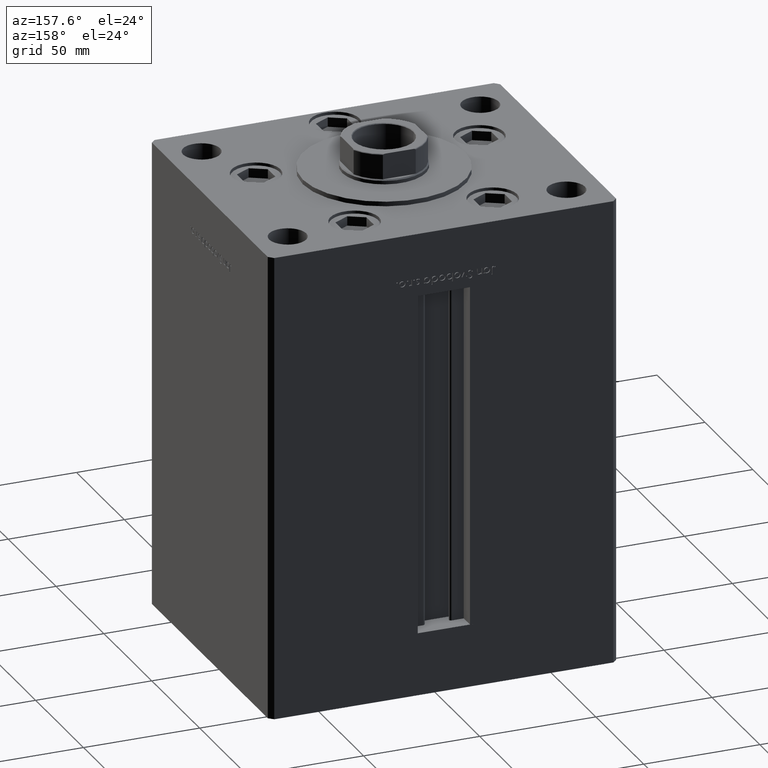
[diagram: clean part render]
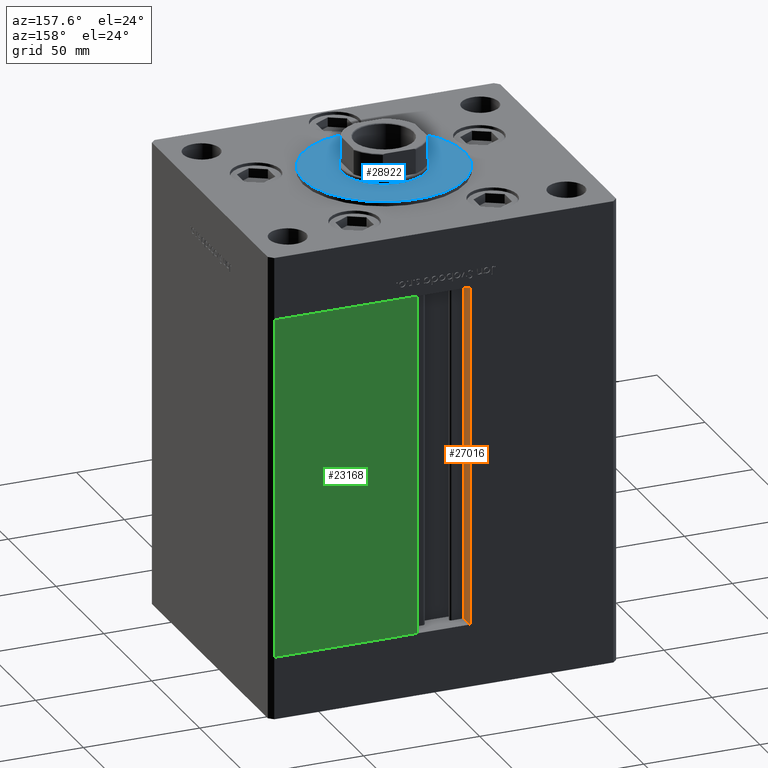
[diagram: same view with three faces highlighted in distinct colors, each labeled with its STEP entity id]
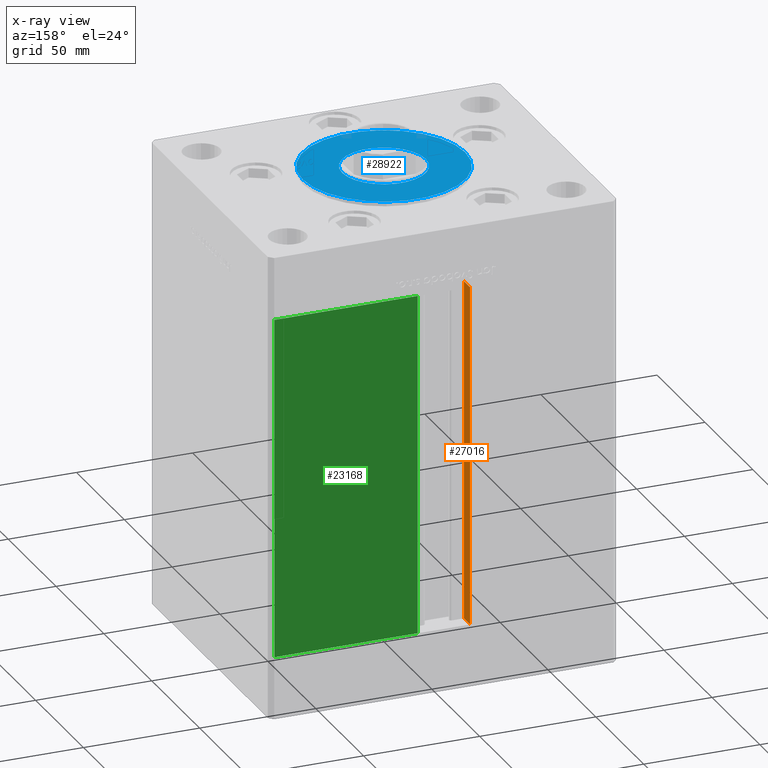
[diagram: x-ray of the same camera — body ghosted, the three highlighted faces saturated]
A machine part, auxiliary view with three faces highlighted in distinct colors.
The next image is the same camera in x-ray (body ghosted, the three faces saturated) — at least one of them is partly hidden behind the body in this view.
Their STEP definitions:

[orange] entity #27016 — the highlighted planar face has unit normal (-1, 0, 0).
#2589 = AXIS2_PLACEMENT_3D ( 'NONE', #25326, #21640, #41442 ) ;
#4265 = VERTEX_POINT ( 'NONE', #22348 ) ;
#5116 = CARTESIAN_POINT ( 'NONE',  ( -11.25000000000000178, 55.99999999999999289, 147.0000000000000000 ) ) ;
#5845 = PLANE ( 'NONE',  #2589 ) ;
#6434 = CARTESIAN_POINT ( 'NONE',  ( -11.25000000000000178, 62.49999999999999289, 147.0000000000000000 ) ) ;
#7389 = EDGE_CURVE ( 'NONE', #4265, #13001, #43411, .T. ) ;
#11290 = ORIENTED_EDGE ( 'NONE', *, *, #39368, .F. ) ;
#12696 = ORIENTED_EDGE ( 'NONE', *, *, #7389, .F. ) ;
#13001 = VERTEX_POINT ( 'NONE', #37834 ) ;
#13380 = LINE ( 'NONE', #32608, #49014 ) ;
#14584 = DIRECTION ( 'NONE',  ( -0.000000000000000000, -0.000000000000000000, 1.000000000000000000 ) ) ;
#17044 = EDGE_CURVE ( 'NONE', #47382, #36752, #41125, .T. ) ;
#17066 = DIRECTION ( 'NONE',  ( -0.000000000000000000, -0.000000000000000000, 1.000000000000000000 ) ) ;
#17794 = VECTOR ( 'NONE', #20550, 1000.000000000000000 ) ;
#19596 = VECTOR ( 'NONE', #14584, 1000.000000000000000 ) ;
#20550 = DIRECTION ( 'NONE',  ( 0.000000000000000000, 1.000000000000000000, 0.000000000000000000 ) ) ;
#21640 = DIRECTION ( 'NONE',  ( -1.000000000000000000, 0.000000000000000000, 0.000000000000000000 ) ) ;
#21896 = FACE_OUTER_BOUND ( 'NONE', #27072, .T. ) ;
#22348 = CARTESIAN_POINT ( 'NONE',  ( -11.25000000000000178, 62.49999999999999289, 0.000000000000000000 ) ) ;
#22439 = EDGE_CURVE ( 'NONE', #4265, #36752, #13380, .T. ) ;
#22456 = LINE ( 'NONE', #26400, #19596 ) ;
#23890 = ORIENTED_EDGE ( 'NONE', *, *, #22439, .T. ) ;
#24753 = CARTESIAN_POINT ( 'NONE',  ( -11.25000000000000178, 0.000000000000000000, 147.0000000000000000 ) ) ;
#25326 = CARTESIAN_POINT ( 'NONE',  ( -11.25000000000000178, 55.99999999999999289, 0.000000000000000000 ) ) ;
#26400 = CARTESIAN_POINT ( 'NONE',  ( -11.25000000000000178, 55.99999999999999289, 0.000000000000000000 ) ) ;
#27016 = ADVANCED_FACE ( 'NONE', ( #21896 ), #5845, .F. ) ;
#27036 = CARTESIAN_POINT ( 'NONE',  ( -11.25000000000000178, 55.99999999999999289, 0.000000000000000000 ) ) ;
#27072 = EDGE_LOOP ( 'NONE', ( #11290, #12696, #23890, #27797 ) ) ;
#27797 = ORIENTED_EDGE ( 'NONE', *, *, #17044, .F. ) ;
#32608 = CARTESIAN_POINT ( 'NONE',  ( -11.25000000000000178, 62.49999999999999289, 0.000000000000000000 ) ) ;
#36752 = VERTEX_POINT ( 'NONE', #6434 ) ;
#37834 = CARTESIAN_POINT ( 'NONE',  ( -11.25000000000000178, 55.99999999999999289, 0.000000000000000000 ) ) ;
#39368 = EDGE_CURVE ( 'NONE', #13001, #47382, #22456, .T. ) ;
#40294 = VECTOR ( 'NONE', #43932, 1000.000000000000000 ) ;
#41125 = LINE ( 'NONE', #24753, #17794 ) ;
#41442 = DIRECTION ( 'NONE',  ( 0.000000000000000000, 0.000000000000000000, 1.000000000000000000 ) ) ;
#43411 = LINE ( 'NONE', #27036, #40294 ) ;
#43932 = DIRECTION ( 'NONE',  ( -0.000000000000000000, -1.000000000000000000, -0.000000000000000000 ) ) ;
#47382 = VERTEX_POINT ( 'NONE', #5116 ) ;
#49014 = VECTOR ( 'NONE', #17066, 1000.000000000000000 ) ;

[blue] entity #28922 — the highlighted planar face has unit normal (0, 0, 1).
#811 = VERTEX_POINT ( 'NONE', #43013 ) ;
#1274 = AXIS2_PLACEMENT_3D ( 'NONE', #33999, #13991, #29510 ) ;
#1917 = EDGE_LOOP ( 'NONE', ( #17515, #3865 ) ) ;
#3439 = ORIENTED_EDGE ( 'NONE', *, *, #45149, .T. ) ;
#3671 = AXIS2_PLACEMENT_3D ( 'NONE', #26528, #42659, #26004 ) ;
#3722 = FACE_OUTER_BOUND ( 'NONE', #18329, .T. ) ;
#3865 = ORIENTED_EDGE ( 'NONE', *, *, #45813, .F. ) ;
#4243 = CARTESIAN_POINT ( 'NONE',  ( 0.000000000000000000, -6.938893903907228378E-15, 2.000000000000000000 ) ) ;
#4615 = CIRCLE ( 'NONE', #45862, 35.00000000000000711 ) ;
#6424 = VERTEX_POINT ( 'NONE', #39373 ) ;
#6850 = DIRECTION ( 'NONE',  ( 1.000000000000000000, 0.000000000000000000, 0.000000000000000000 ) ) ;
#12743 = CARTESIAN_POINT ( 'NONE',  ( -35.00000000000000711, -6.938893903907228378E-15, 2.000000000000000000 ) ) ;
#13991 = DIRECTION ( 'NONE',  ( 0.000000000000000000, 0.000000000000000000, 1.000000000000000000 ) ) ;
#15295 = CIRCLE ( 'NONE', #48190, 35.00000000000000711 ) ;
#17515 = ORIENTED_EDGE ( 'NONE', *, *, #45529, .F. ) ;
#17854 = EDGE_CURVE ( 'NONE', #6424, #28614, #15295, .T. ) ;
#18329 = EDGE_LOOP ( 'NONE', ( #3439, #30173 ) ) ;
#18440 = DIRECTION ( 'NONE',  ( 0.000000000000000000, 0.000000000000000000, 1.000000000000000000 ) ) ;
#19770 = PLANE ( 'NONE',  #32027 ) ;
#26004 = DIRECTION ( 'NONE',  ( 1.000000000000000000, 0.000000000000000000, 0.000000000000000000 ) ) ;
#26528 = CARTESIAN_POINT ( 'NONE',  ( 0.000000000000000000, -6.938893903907228378E-15, 2.000000000000000000 ) ) ;
#28614 = VERTEX_POINT ( 'NONE', #12743 ) ;
#28722 = DIRECTION ( 'NONE',  ( 1.000000000000000000, 0.000000000000000000, -0.000000000000000000 ) ) ;
#28922 = ADVANCED_FACE ( 'NONE', ( #40357, #3722 ), #19770, .T. ) ;
#29510 = DIRECTION ( 'NONE',  ( 1.000000000000000000, 0.000000000000000000, 0.000000000000000000 ) ) ;
#29967 = DIRECTION ( 'NONE',  ( 0.000000000000000000, 0.000000000000000000, 1.000000000000000000 ) ) ;
#30173 = ORIENTED_EDGE ( 'NONE', *, *, #17854, .T. ) ;
#32027 = AXIS2_PLACEMENT_3D ( 'NONE', #4243, #36405, #28722 ) ;
#33999 = CARTESIAN_POINT ( 'NONE',  ( 0.000000000000000000, -6.938893903907228378E-15, 2.000000000000000000 ) ) ;
#35684 = VERTEX_POINT ( 'NONE', #47225 ) ;
#35748 = CIRCLE ( 'NONE', #1274, 18.00000000000000000 ) ;
#36405 = DIRECTION ( 'NONE',  ( 0.000000000000000000, 0.000000000000000000, 1.000000000000000000 ) ) ;
#39373 = CARTESIAN_POINT ( 'NONE',  ( 35.00000000000000711, -2.652630106891490698E-15, 2.000000000000000000 ) ) ;
#40357 = FACE_BOUND ( 'NONE', #1917, .T. ) ;
#42659 = DIRECTION ( 'NONE',  ( 0.000000000000000000, 0.000000000000000000, 1.000000000000000000 ) ) ;
#42971 = CARTESIAN_POINT ( 'NONE',  ( 0.000000000000000000, -6.938893903907228378E-15, 2.000000000000000000 ) ) ;
#43013 = CARTESIAN_POINT ( 'NONE',  ( -18.00000000000000000, -4.734529665441992555E-15, 2.000000000000000000 ) ) ;
#45149 = EDGE_CURVE ( 'NONE', #28614, #6424, #4615, .T. ) ;
#45529 = EDGE_CURVE ( 'NONE', #35684, #811, #35748, .T. ) ;
#45813 = EDGE_CURVE ( 'NONE', #811, #35684, #49131, .T. ) ;
#45862 = AXIS2_PLACEMENT_3D ( 'NONE', #46848, #29967, #46597 ) ;
#46597 = DIRECTION ( 'NONE',  ( 1.000000000000000000, 0.000000000000000000, 0.000000000000000000 ) ) ;
#46848 = CARTESIAN_POINT ( 'NONE',  ( 0.000000000000000000, -6.938893903907228378E-15, 2.000000000000000000 ) ) ;
#47225 = CARTESIAN_POINT ( 'NONE',  ( 18.00000000000000000, -6.938893903907228378E-15, 2.000000000000000000 ) ) ;
#48190 = AXIS2_PLACEMENT_3D ( 'NONE', #42971, #18440, #6850 ) ;
#49131 = CIRCLE ( 'NONE', #3671, 18.00000000000000000 ) ;

[green] entity #23168 — the highlighted planar face has unit normal (-0, -1, 0).
#239 = VERTEX_POINT ( 'NONE', #3836 ) ;
#259 = DIRECTION ( 'NONE',  ( 1.000000000000000000, 0.000000000000000000, 0.000000000000000000 ) ) ;
#3836 = CARTESIAN_POINT ( 'NONE',  ( 73.00000000000001421, 62.50000000000000000, 0.000000000000000000 ) ) ;
#5052 = CARTESIAN_POINT ( 'NONE',  ( 11.25000000000000178, 62.49999999999999289, 0.000000000000000000 ) ) ;
#6670 = LINE ( 'NONE', #30907, #48984 ) ;
#6783 = DIRECTION ( 'NONE',  ( 1.000000000000000000, -1.123707514802790025E-16, 0.000000000000000000 ) ) ;
#7651 = CARTESIAN_POINT ( 'NONE',  ( 73.00000000000001421, 62.50000000000000000, 147.0000000000000000 ) ) ;
#8129 = LINE ( 'NONE', #27871, #39614 ) ;
#16738 = ORIENTED_EDGE ( 'NONE', *, *, #47523, .T. ) ;
#19077 = EDGE_CURVE ( 'NONE', #19090, #27187, #20259, .T. ) ;
#19090 = VERTEX_POINT ( 'NONE', #35295 ) ;
#19707 = DIRECTION ( 'NONE',  ( -0.000000000000000000, -0.000000000000000000, 1.000000000000000000 ) ) ;
#20069 = CARTESIAN_POINT ( 'NONE',  ( 73.00000000000001421, 62.50000000000000000, 147.0000000000000000 ) ) ;
#20259 = LINE ( 'NONE', #48227, #47246 ) ;
#20689 = ORIENTED_EDGE ( 'NONE', *, *, #21007, .T. ) ;
#21007 = EDGE_CURVE ( 'NONE', #239, #33464, #6670, .T. ) ;
#23168 = ADVANCED_FACE ( 'NONE', ( #26787 ), #43684, .F. ) ;
#23351 = DIRECTION ( 'NONE',  ( -1.123707514802790025E-16, -1.000000000000000000, 0.000000000000000000 ) ) ;
#25201 = EDGE_LOOP ( 'NONE', ( #20689, #39803, #26353, #16738 ) ) ;
#26353 = ORIENTED_EDGE ( 'NONE', *, *, #19077, .T. ) ;
#26787 = FACE_OUTER_BOUND ( 'NONE', #25201, .T. ) ;
#27187 = VERTEX_POINT ( 'NONE', #7651 ) ;
#27871 = CARTESIAN_POINT ( 'NONE',  ( 11.25000000000000178, 62.49999999999999289, 0.000000000000000000 ) ) ;
#28145 = EDGE_CURVE ( 'NONE', #33464, #19090, #8129, .T. ) ;
#30907 = CARTESIAN_POINT ( 'NONE',  ( -11.25000000000000178, 62.49999999999999289, 0.000000000000000000 ) ) ;
#33464 = VERTEX_POINT ( 'NONE', #5052 ) ;
#35295 = CARTESIAN_POINT ( 'NONE',  ( 11.24999999999999467, 62.49999999999999289, 147.0000000000000000 ) ) ;
#35558 = AXIS2_PLACEMENT_3D ( 'NONE', #47380, #23351, #6783 ) ;
#39614 = VECTOR ( 'NONE', #19707, 1000.000000000000000 ) ;
#39617 = DIRECTION ( 'NONE',  ( -0.000000000000000000, -0.000000000000000000, -1.000000000000000000 ) ) ;
#39803 = ORIENTED_EDGE ( 'NONE', *, *, #28145, .T. ) ;
#41372 = LINE ( 'NONE', #20069, #46602 ) ;
#42281 = DIRECTION ( 'NONE',  ( -1.000000000000000000, 1.123707514802790025E-16, 0.000000000000000000 ) ) ;
#43684 = PLANE ( 'NONE',  #35558 ) ;
#46602 = VECTOR ( 'NONE', #39617, 1000.000000000000000 ) ;
#47246 = VECTOR ( 'NONE', #259, 1000.000000000000000 ) ;
#47380 = CARTESIAN_POINT ( 'NONE',  ( -11.25000000000000178, 62.49999999999999289, 147.0000000000000000 ) ) ;
#47523 = EDGE_CURVE ( 'NONE', #27187, #239, #41372, .T. ) ;
#48227 = CARTESIAN_POINT ( 'NONE',  ( -11.25000000000000178, 62.49999999999999289, 147.0000000000000000 ) ) ;
#48984 = VECTOR ( 'NONE', #42281, 1000.000000000000000 ) ;